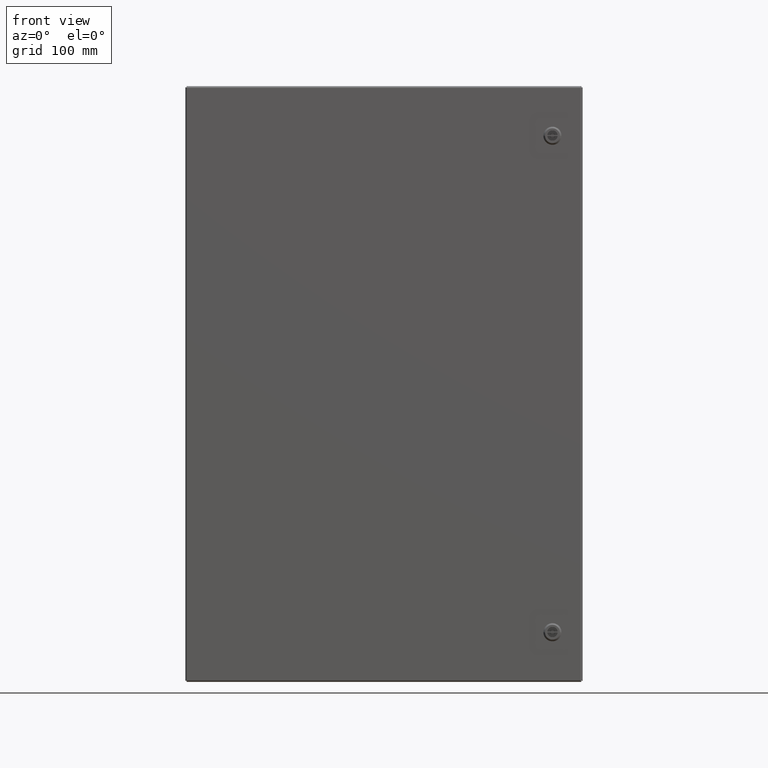
[diagram: clean part render]
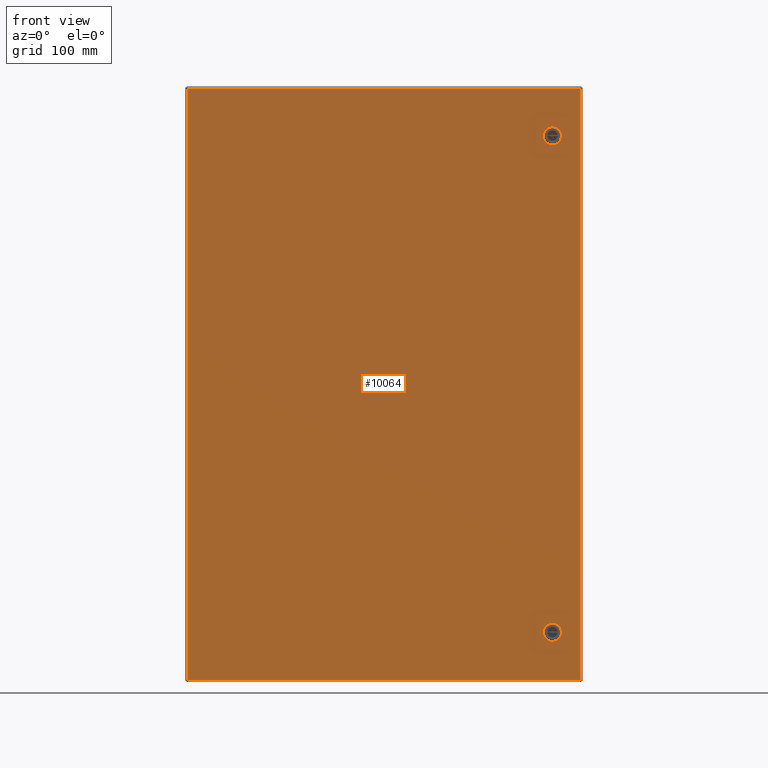
[diagram: same view with one face highlighted and labeled with its STEP entity id]
A machine part, front view. The second image highlights one B-rep face of the part: STEP entity #10064.
In plain terms, the highlighted planar face has unit normal (0, -1, 0).
Its self-contained STEP definition (entity closure, byte-faithful):
#328 = ORIENTED_EDGE ( 'NONE', *, *, #26757, .T. ) ;
#459 = VECTOR ( 'NONE', #19169, 39.37007874015748143 ) ;
#582 = ORIENTED_EDGE ( 'NONE', *, *, #15299, .T. ) ;
#676 = CARTESIAN_POINT ( 'NONE',  ( 10.57250000000002466, -8.837000000000001521, -17.87700000000000955 ) ) ;
#1250 = ORIENTED_EDGE ( 'NONE', *, *, #17172, .T. ) ;
#1389 = VECTOR ( 'NONE', #11154, 39.37007874015748143 ) ;
#1437 = ORIENTED_EDGE ( 'NONE', *, *, #28038, .T. ) ;
#1860 = LINE ( 'NONE', #30645, #12796 ) ;
#2088 = VECTOR ( 'NONE', #16641, 39.37007874015748854 ) ;
#2349 = CARTESIAN_POINT ( 'NONE',  ( 10.57250000000002466, -8.837000000000001521, -15.23099660813130640 ) ) ;
#2527 = CARTESIAN_POINT ( 'NONE',  ( -11.88800000000001766, -8.836999916351045314, 17.87599999999999767 ) ) ;
#2874 = VERTEX_POINT ( 'NONE', #22967 ) ;
#3050 = FACE_BOUND ( 'NONE', #17197, .T. ) ;
#3084 = ORIENTED_EDGE ( 'NONE', *, *, #20228, .T. ) ;
#3175 = CARTESIAN_POINT ( 'NONE',  ( -11.88800000000001411, -8.837000000000001521, -17.87700000000000955 ) ) ;
#3331 = CARTESIAN_POINT ( 'NONE',  ( 11.86499999999998956, -8.836999966540419749, -17.87700000000000955 ) ) ;
#3670 = CARTESIAN_POINT ( 'NONE',  ( -11.88800000000001411, -8.837000000000001521, 15.39450000000003271 ) ) ;
#3911 = EDGE_CURVE ( 'NONE', #10092, #14259, #21908, .T. ) ;
#4040 = LINE ( 'NONE', #15798, #16760 ) ;
#4073 = VERTEX_POINT ( 'NONE', #10755 ) ;
#4077 = DIRECTION ( 'NONE',  ( -0.0000000000000000000, 0.0000000000000000000, 1.000000000000000000 ) ) ;
#4410 = VERTEX_POINT ( 'NONE', #19860 ) ;
#4955 = ORIENTED_EDGE ( 'NONE', *, *, #11617, .T. ) ;
#5167 = LINE ( 'NONE', #676, #1389 ) ;
#5725 = EDGE_CURVE ( 'NONE', #2874, #16519, #15524, .T. ) ;
#5877 = LINE ( 'NONE', #17634, #23715 ) ;
#5979 = VECTOR ( 'NONE', #27324, 39.37007874015748143 ) ;
#6020 = VERTEX_POINT ( 'NONE', #30483 ) ;
#6306 = ORIENTED_EDGE ( 'NONE', *, *, #5725, .T. ) ;
#6772 = VERTEX_POINT ( 'NONE', #28814 ) ;
#7664 = VECTOR ( 'NONE', #12609, 39.37007874015748143 ) ;
#7735 = DIRECTION ( 'NONE',  ( 0.7071067811864629737, 0.0000000000000000000, 0.7071067811866320607 ) ) ;
#7775 = EDGE_CURVE ( 'NONE', #4410, #27729, #21040, .T. ) ;
#7870 = DIRECTION ( 'NONE',  ( -1.000000000000000000, -0.0000000000000000000, -0.0000000000000000000 ) ) ;
#8016 = PLANE ( 'NONE',  #18296 ) ;
#8487 = DIRECTION ( 'NONE',  ( 1.000000000000000000, 0.0000000000000000000, 0.0000000000000000000 ) ) ;
#9302 = VECTOR ( 'NONE', #30405, 39.37007874015748143 ) ;
#10064 = ADVANCED_FACE ( 'NONE', ( #12629, #26883, #3050 ), #8016, .T. ) ;
#10067 = ORIENTED_EDGE ( 'NONE', *, *, #7775, .T. ) ;
#10092 = VERTEX_POINT ( 'NONE', #14651 ) ;
#10221 = CARTESIAN_POINT ( 'NONE',  ( 10.40799660813128824, -8.837000000000001521, -14.60449999999996784 ) ) ;
#10319 = DIRECTION ( 'NONE',  ( 0.0000000000000000000, -0.0000000000000000000, -1.000000000000000000 ) ) ;
#10755 = CARTESIAN_POINT ( 'NONE',  ( 9.946003391868687871, -8.837000000000001521, 15.39450000000003271 ) ) ;
#10973 = VECTOR ( 'NONE', #20951, 39.37007874015748854 ) ;
#11058 = VERTEX_POINT ( 'NONE', #21656 ) ;
#11083 = CARTESIAN_POINT ( 'NONE',  ( 9.946003391868689647, -8.837000000000005073, 14.60349999999996307 ) ) ;
#11154 = DIRECTION ( 'NONE',  ( 0.0000000000000000000, -0.0000000000000000000, -1.000000000000000000 ) ) ;
#11206 = CARTESIAN_POINT ( 'NONE',  ( 11.86499999999998778, -8.837000000000001521, -17.87700000000000955 ) ) ;
#11617 = EDGE_CURVE ( 'NONE', #16670, #28816, #11650, .T. ) ;
#11650 = LINE ( 'NONE', #21092, #10973 ) ;
#12230 = CARTESIAN_POINT ( 'NONE',  ( 9.781499999999946127, -8.837000000000001521, 15.22999660813129275 ) ) ;
#12609 = DIRECTION ( 'NONE',  ( 1.000000000000000000, 0.0000000000000000000, 0.0000000000000000000 ) ) ;
#12610 = ORIENTED_EDGE ( 'NONE', *, *, #16475, .T. ) ;
#12629 = FACE_OUTER_BOUND ( 'NONE', #19839, .T. ) ;
#12796 = VECTOR ( 'NONE', #23656, 39.37007874015748143 ) ;
#13049 = VERTEX_POINT ( 'NONE', #20243 ) ;
#13246 = CARTESIAN_POINT ( 'NONE',  ( 9.946003391868686094, -8.837000000000001521, 14.60349999999995951 ) ) ;
#13313 = VECTOR ( 'NONE', #7735, 39.37007874015748854 ) ;
#13388 = LINE ( 'NONE', #20964, #9302 ) ;
#13482 = DIRECTION ( 'NONE',  ( -1.000000000000000000, -0.0000000000000000000, -0.0000000000000000000 ) ) ;
#13488 = VERTEX_POINT ( 'NONE', #20819 ) ;
#13665 = DIRECTION ( 'NONE',  ( -0.7071067811866367236, 0.0000000000000000000, -0.7071067811864583108 ) ) ;
#13933 = CARTESIAN_POINT ( 'NONE',  ( 10.57250000000002466, -8.837000000000001521, -17.87700000000000955 ) ) ;
#13976 = LINE ( 'NONE', #2349, #23769 ) ;
#14150 = VERTEX_POINT ( 'NONE', #21145 ) ;
#14259 = VERTEX_POINT ( 'NONE', #3331 ) ;
#14442 = VERTEX_POINT ( 'NONE', #11083 ) ;
#14496 = LINE ( 'NONE', #26098, #18687 ) ;
#14651 = CARTESIAN_POINT ( 'NONE',  ( -11.88800000000001411, -8.837000000000001521, -17.87700000000000955 ) ) ;
#14853 = CARTESIAN_POINT ( 'NONE',  ( 10.57250000000002643, -8.837000000000001521, -15.23099660813130640 ) ) ;
#15259 = EDGE_CURVE ( 'NONE', #13488, #11058, #4040, .T. ) ;
#15299 = EDGE_CURVE ( 'NONE', #22310, #6020, #1860, .T. ) ;
#15447 = DIRECTION ( 'NONE',  ( -0.7071067811864629737, 0.0000000000000000000, 0.7071067811866320607 ) ) ;
#15524 = LINE ( 'NONE', #24965, #18611 ) ;
#15570 = CARTESIAN_POINT ( 'NONE',  ( 9.781499999999946127, -8.837000000000001521, 15.22999660813129630 ) ) ;
#15666 = ORIENTED_EDGE ( 'NONE', *, *, #17944, .T. ) ;
#15798 = CARTESIAN_POINT ( 'NONE',  ( -11.88800000000001411, -8.837000000000001521, -15.39550000000004459 ) ) ;
#16475 = EDGE_CURVE ( 'NONE', #6020, #4410, #19053, .T. ) ;
#16519 = VERTEX_POINT ( 'NONE', #12230 ) ;
#16641 = DIRECTION ( 'NONE',  ( 0.7071067811865474617, 0.0000000000000000000, -0.7071067811865474617 ) ) ;
#16670 = VERTEX_POINT ( 'NONE', #22294 ) ;
#16760 = VECTOR ( 'NONE', #13482, 39.37007874015748143 ) ;
#16800 = CARTESIAN_POINT ( 'NONE',  ( 10.40799660813128824, -8.837000000000001521, 15.39450000000003271 ) ) ;
#16955 = ORIENTED_EDGE ( 'NONE', *, *, #3911, .T. ) ;
#17009 = CARTESIAN_POINT ( 'NONE',  ( -11.88800000000001411, -8.837000000000001521, 17.87599999999999767 ) ) ;
#17032 = CARTESIAN_POINT ( 'NONE',  ( 9.781499999999946127, -8.837000000000001521, -14.76900339186874689 ) ) ;
#17172 = EDGE_CURVE ( 'NONE', #11058, #13049, #14496, .T. ) ;
#17197 = EDGE_LOOP ( 'NONE', ( #21004, #28176, #582, #12610, #10067, #19369, #22493, #1250 ) ) ;
#17244 = EDGE_CURVE ( 'NONE', #13049, #14150, #13388, .T. ) ;
#17285 = DIRECTION ( 'NONE',  ( 0.0000000000000000000, -1.000000000000000000, 0.0000000000000000000 ) ) ;
#17376 = VECTOR ( 'NONE', #8487, 39.37007874015748143 ) ;
#17525 = EDGE_CURVE ( 'NONE', #6772, #16670, #5167, .T. ) ;
#17613 = ORIENTED_EDGE ( 'NONE', *, *, #17525, .T. ) ;
#17634 = CARTESIAN_POINT ( 'NONE',  ( -11.88800000000001411, -8.837000000000001521, 14.60349999999995951 ) ) ;
#17883 = LINE ( 'NONE', #11206, #5979 ) ;
#17944 = EDGE_CURVE ( 'NONE', #26963, #28125, #21640, .T. ) ;
#18276 = VECTOR ( 'NONE', #22115, 39.37007874015748143 ) ;
#18296 = AXIS2_PLACEMENT_3D ( 'NONE', #21618, #17285, #10319 ) ;
#18611 = VECTOR ( 'NONE', #4077, 39.37007874015748143 ) ;
#18687 = VECTOR ( 'NONE', #21141, 39.37007874015748143 ) ;
#19053 = LINE ( 'NONE', #10221, #19122 ) ;
#19122 = VECTOR ( 'NONE', #23852, 39.37007874015748143 ) ;
#19127 = EDGE_CURVE ( 'NONE', #28125, #10092, #29557, .T. ) ;
#19169 = DIRECTION ( 'NONE',  ( 0.0000000000000000000, -0.0000000000000000000, -1.000000000000000000 ) ) ;
#19369 = ORIENTED_EDGE ( 'NONE', *, *, #25941, .T. ) ;
#19519 = EDGE_CURVE ( 'NONE', #28816, #14442, #5877, .T. ) ;
#19777 = ORIENTED_EDGE ( 'NONE', *, *, #25627, .T. ) ;
#19839 = EDGE_LOOP ( 'NONE', ( #3084, #15666, #21288, #16955 ) ) ;
#19860 = CARTESIAN_POINT ( 'NONE',  ( 10.57250000000002643, -8.837000000000001521, -14.76900339186870603 ) ) ;
#19917 = VECTOR ( 'NONE', #15447, 39.37007874015748854 ) ;
#20217 = LINE ( 'NONE', #15570, #22781 ) ;
#20228 = EDGE_CURVE ( 'NONE', #14259, #26963, #17883, .T. ) ;
#20243 = CARTESIAN_POINT ( 'NONE',  ( 9.781499999999946127, -8.837000000000001521, -15.23099660813130640 ) ) ;
#20397 = LINE ( 'NONE', #3670, #17376 ) ;
#20676 = VECTOR ( 'NONE', #7870, 39.37007874015748143 ) ;
#20819 = CARTESIAN_POINT ( 'NONE',  ( 10.40799660813125627, -8.837000000000001521, -15.39550000000005348 ) ) ;
#20871 = EDGE_CURVE ( 'NONE', #14150, #22310, #29268, .T. ) ;
#20951 = DIRECTION ( 'NONE',  ( -0.7071067811865474617, 0.0000000000000000000, -0.7071067811865474617 ) ) ;
#20964 = CARTESIAN_POINT ( 'NONE',  ( 9.781499999999946127, -8.837000000000001521, -17.87700000000000955 ) ) ;
#21004 = ORIENTED_EDGE ( 'NONE', *, *, #17244, .T. ) ;
#21040 = LINE ( 'NONE', #13933, #459 ) ;
#21092 = CARTESIAN_POINT ( 'NONE',  ( 10.57250000000002466, -8.837000000000001521, 14.76800339186873856 ) ) ;
#21127 = LINE ( 'NONE', #16800, #2088 ) ;
#21141 = DIRECTION ( 'NONE',  ( -0.7071067811866461605, 0.0000000000000000000, 0.7071067811864488739 ) ) ;
#21145 = CARTESIAN_POINT ( 'NONE',  ( 9.781499999999940798, -8.837000000000001521, -14.76900339186874156 ) ) ;
#21198 = ORIENTED_EDGE ( 'NONE', *, *, #28019, .T. ) ;
#21288 = ORIENTED_EDGE ( 'NONE', *, *, #19127, .T. ) ;
#21618 = CARTESIAN_POINT ( 'NONE',  ( -11.88800000000001411, -8.837000000000001521, -17.87700000000000955 ) ) ;
#21640 = LINE ( 'NONE', #17009, #20676 ) ;
#21656 = CARTESIAN_POINT ( 'NONE',  ( 9.946003391868723398, -8.837000000000001521, -15.39550000000004815 ) ) ;
#21908 = LINE ( 'NONE', #3175, #7664 ) ;
#22115 = DIRECTION ( 'NONE',  ( 0.0000000000000000000, -0.0000000000000000000, -1.000000000000000000 ) ) ;
#22294 = CARTESIAN_POINT ( 'NONE',  ( 10.57250000000002466, -8.837000000000001521, 14.76800339186873323 ) ) ;
#22310 = VERTEX_POINT ( 'NONE', #23388 ) ;
#22493 = ORIENTED_EDGE ( 'NONE', *, *, #15259, .T. ) ;
#22781 = VECTOR ( 'NONE', #25012, 39.37007874015748143 ) ;
#22967 = CARTESIAN_POINT ( 'NONE',  ( 9.781499999999946127, -8.837000000000013955, 14.76800339186873856 ) ) ;
#23388 = CARTESIAN_POINT ( 'NONE',  ( 9.946003391868684318, -8.837000000000001521, -14.60449999999996962 ) ) ;
#23656 = DIRECTION ( 'NONE',  ( 1.000000000000000000, 0.0000000000000000000, 0.0000000000000000000 ) ) ;
#23715 = VECTOR ( 'NONE', #27075, 39.37007874015748143 ) ;
#23769 = VECTOR ( 'NONE', #13665, 39.37007874015748143 ) ;
#23852 = DIRECTION ( 'NONE',  ( 0.7071067811865427988, 0.0000000000000000000, -0.7071067811865522357 ) ) ;
#24518 = CARTESIAN_POINT ( 'NONE',  ( 11.86499999999998778, -8.837000000000001521, 17.87599999999999767 ) ) ;
#24965 = CARTESIAN_POINT ( 'NONE',  ( 9.781499999999946127, -8.837000000000001521, -17.87700000000000955 ) ) ;
#25012 = DIRECTION ( 'NONE',  ( 0.7071067811865570096, 0.0000000000000000000, 0.7071067811865381358 ) ) ;
#25627 = EDGE_CURVE ( 'NONE', #16519, #4073, #20217, .T. ) ;
#25723 = VERTEX_POINT ( 'NONE', #27946 ) ;
#25941 = EDGE_CURVE ( 'NONE', #27729, #13488, #13976, .T. ) ;
#25976 = CARTESIAN_POINT ( 'NONE',  ( 10.40799660813124738, -8.837000000000001521, 14.60349999999995951 ) ) ;
#26098 = CARTESIAN_POINT ( 'NONE',  ( 9.946003391868730503, -8.837000000000001521, -15.39550000000004459 ) ) ;
#26522 = EDGE_LOOP ( 'NONE', ( #6306, #19777, #1437, #328, #17613, #4955, #27979, #21198 ) ) ;
#26757 = EDGE_CURVE ( 'NONE', #25723, #6772, #21127, .T. ) ;
#26883 = FACE_BOUND ( 'NONE', #26522, .T. ) ;
#26963 = VERTEX_POINT ( 'NONE', #24518 ) ;
#27075 = DIRECTION ( 'NONE',  ( -1.000000000000000000, -0.0000000000000000000, -0.0000000000000000000 ) ) ;
#27324 = DIRECTION ( 'NONE',  ( -0.0000000000000000000, 0.0000000000000000000, 1.000000000000000000 ) ) ;
#27729 = VERTEX_POINT ( 'NONE', #14853 ) ;
#27946 = CARTESIAN_POINT ( 'NONE',  ( 10.40799660813127758, -8.837000000000001521, 15.39450000000003271 ) ) ;
#27979 = ORIENTED_EDGE ( 'NONE', *, *, #19519, .T. ) ;
#28019 = EDGE_CURVE ( 'NONE', #14442, #2874, #29372, .T. ) ;
#28038 = EDGE_CURVE ( 'NONE', #4073, #25723, #20397, .T. ) ;
#28125 = VERTEX_POINT ( 'NONE', #2527 ) ;
#28176 = ORIENTED_EDGE ( 'NONE', *, *, #20871, .T. ) ;
#28814 = CARTESIAN_POINT ( 'NONE',  ( 10.57250000000001222, -8.837000000000001521, 15.22999660813128564 ) ) ;
#28816 = VERTEX_POINT ( 'NONE', #25976 ) ;
#29268 = LINE ( 'NONE', #17032, #13313 ) ;
#29372 = LINE ( 'NONE', #13246, #19917 ) ;
#29557 = LINE ( 'NONE', #29723, #18276 ) ;
#29723 = CARTESIAN_POINT ( 'NONE',  ( -11.88800000000001411, -8.837000000000001521, -17.87700000000000955 ) ) ;
#30405 = DIRECTION ( 'NONE',  ( -0.0000000000000000000, 0.0000000000000000000, 1.000000000000000000 ) ) ;
#30483 = CARTESIAN_POINT ( 'NONE',  ( 10.40799660813128646, -8.837000000000001521, -14.60449999999996784 ) ) ;
#30645 = CARTESIAN_POINT ( 'NONE',  ( -11.88800000000001411, -8.837000000000001521, -14.60449999999996784 ) ) ;